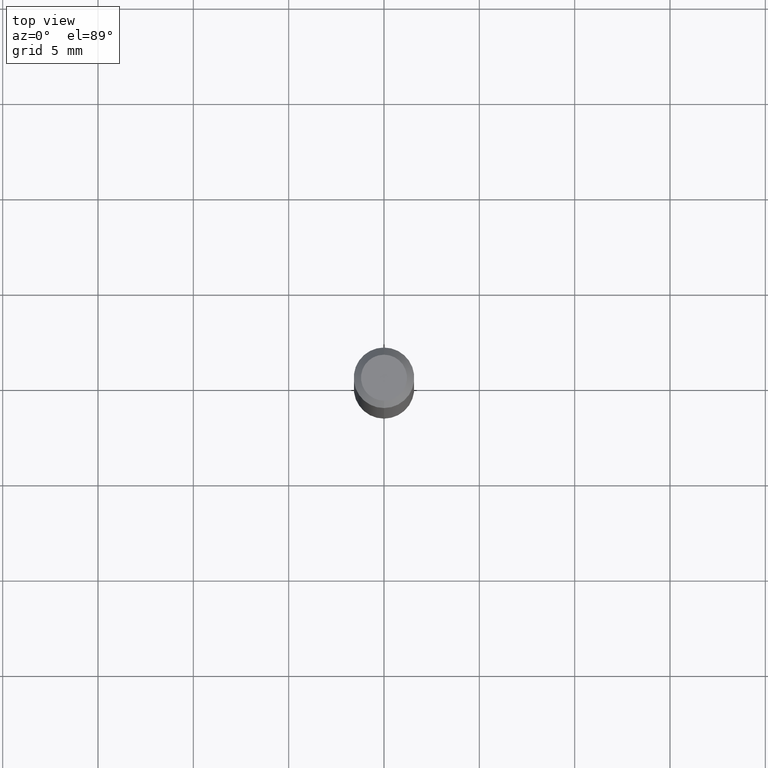
[diagram: clean part render]
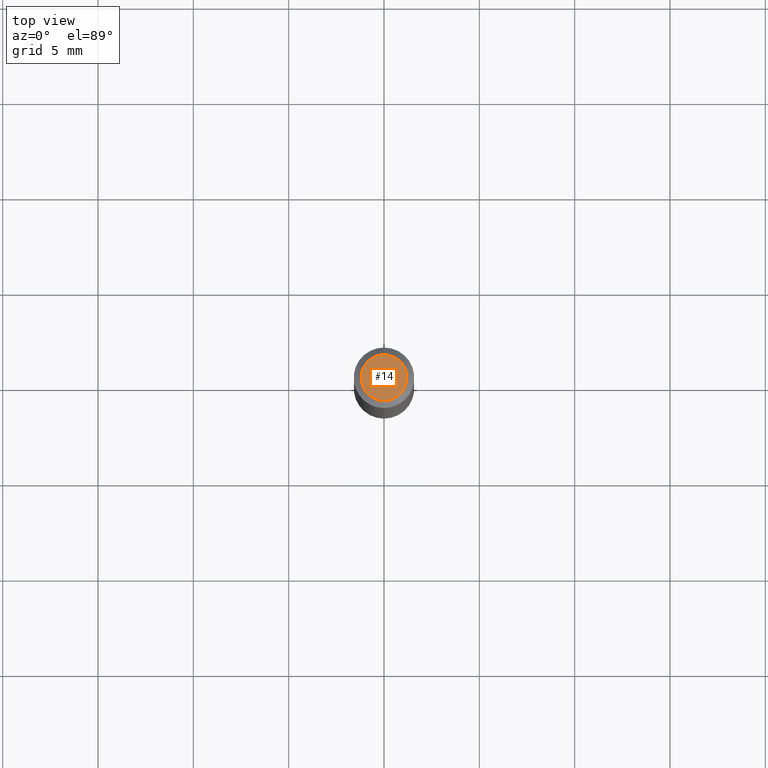
[diagram: same view with one face highlighted and labeled with its STEP entity id]
A machine part, top view. The second image highlights one B-rep face of the part: STEP entity #14.
In plain terms, the highlighted planar face has unit normal (0, -0, -1).
Its self-contained STEP definition (entity closure, byte-faithful):
#14 = ADVANCED_FACE ( 'NONE', ( #193 ), #261, .F. ) ;
#73 = CARTESIAN_POINT ( 'NONE',  ( 3.316907271900976096E-16, 0.04749999999999999362, -4.610124276185011717E-17 ) ) ;
#75 = EDGE_CURVE ( 'NONE', #502, #257, #505, .T. ) ;
#83 = DIRECTION ( 'NONE',  ( -2.445462910778639321E-29, 3.491489781400795201E-15, 1.000000000000000000 ) ) ;
#117 = DIRECTION ( 'NONE',  ( -6.982962677686266711E-15, -1.000000000000000000, 3.491489781400794412E-15 ) ) ;
#147 = EDGE_LOOP ( 'NONE', ( #194, #301 ) ) ;
#193 = FACE_OUTER_BOUND ( 'NONE', #147, .T. ) ;
#194 = ORIENTED_EDGE ( 'NONE', *, *, #75, .T. ) ;
#211 = DIRECTION ( 'NONE',  ( -6.982962677686266711E-15, -1.000000000000000000, 3.491489781400794412E-15 ) ) ;
#213 = EDGE_CURVE ( 'NONE', #257, #502, #466, .T. ) ;
#257 = VERTEX_POINT ( 'NONE', #369 ) ;
#261 = PLANE ( 'NONE',  #296 ) ;
#269 = DIRECTION ( 'NONE',  ( -2.445462910778639321E-29, 3.491489781400795201E-15, 1.000000000000000000 ) ) ;
#296 = AXIS2_PLACEMENT_3D ( 'NONE', #73, #512, #312 ) ;
#301 = ORIENTED_EDGE ( 'NONE', *, *, #213, .T. ) ;
#312 = DIRECTION ( 'NONE',  ( 6.982962677686265922E-15, 1.000000000000000000, -3.491489781400795201E-15 ) ) ;
#359 = CARTESIAN_POINT ( 'NONE',  ( -5.856615739291216554E-45, 8.361735488687322193E-31, 2.394890437093752876E-16 ) ) ;
#363 = CARTESIAN_POINT ( 'NONE',  ( -5.856615739291216554E-45, 8.361735488687322193E-31, 2.394890437093752876E-16 ) ) ;
#367 = AXIS2_PLACEMENT_3D ( 'NONE', #363, #83, #211 ) ;
#369 = CARTESIAN_POINT ( 'NONE',  ( -3.773273898774340269E-16, -0.04749999999999999362, 4.053348083259130054E-16 ) ) ;
#379 = AXIS2_PLACEMENT_3D ( 'NONE', #359, #269, #117 ) ;
#415 = CARTESIAN_POINT ( 'NONE',  ( 3.840629472727447874E-16, 0.04749999999999999362, 7.364327909283752044E-17 ) ) ;
#466 = CIRCLE ( 'NONE', #379, 0.04749999999999999362 ) ;
#502 = VERTEX_POINT ( 'NONE', #415 ) ;
#505 = CIRCLE ( 'NONE', #367, 0.04749999999999999362 ) ;
#512 = DIRECTION ( 'NONE',  ( 2.445462910778639041E-29, -3.491489781400795201E-15, -1.000000000000000000 ) ) ;